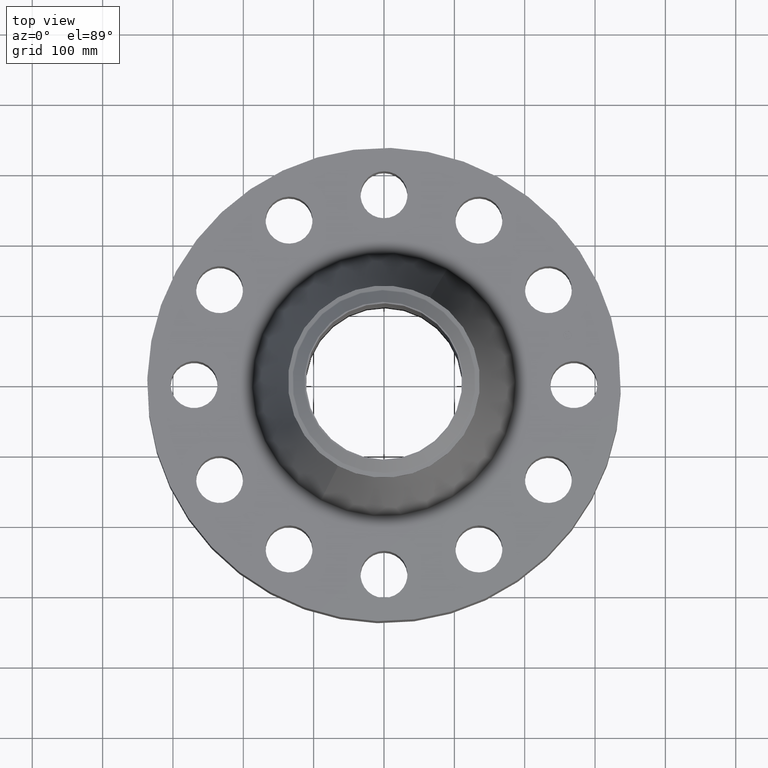
[diagram: clean part render]
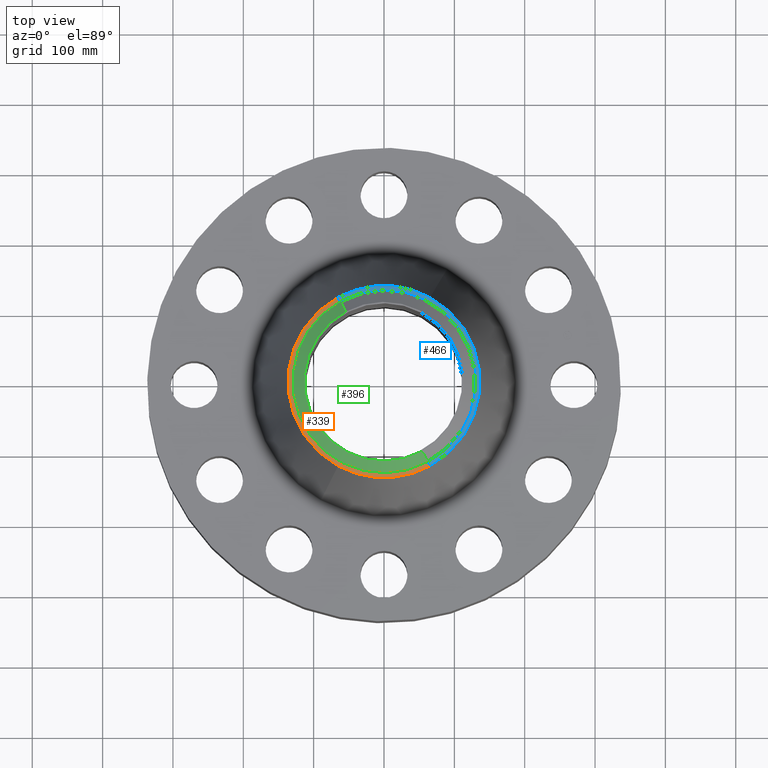
[diagram: same view with three faces highlighted in distinct colors, each labeled with its STEP entity id]
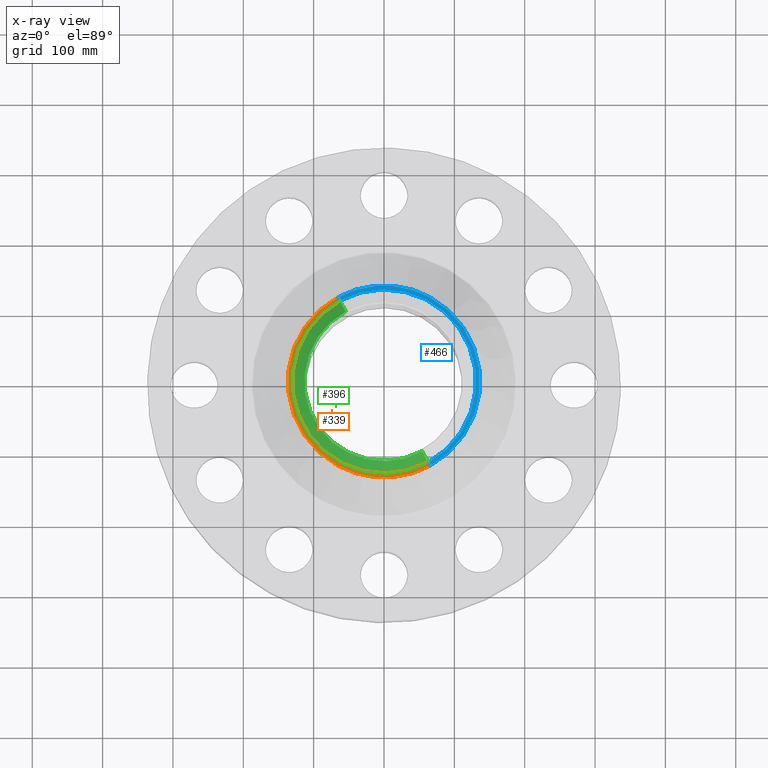
[diagram: x-ray of the same camera — body ghosted, the three highlighted faces saturated]
A machine part, top view with three faces highlighted in distinct colors.
The next image is the same camera in x-ray (body ghosted, the three faces saturated) — at least one of them is partly hidden behind the body in this view.
Their STEP definitions:

[orange] entity #339 — the highlighted conical surface has half-angle 80 deg.
#277=AXIS2_PLACEMENT_3D('Circle Axis2P3D',#275,#276,$) ;
#290=AXIS2_PLACEMENT_3D('Circle Axis2P3D',#288,#289,$) ;
#311=AXIS2_PLACEMENT_3D('Cone Axis2P3D',#308,#309,#310) ;
#322=AXIS2_PLACEMENT_3D('Circle Axis2P3D',#320,#321,$) ;
#258=CARTESIAN_POINT('Vertex',(-2.57691227001,-4.71700627018,15.9420058476)) ;
#272=CARTESIAN_POINT('Vertex',(2.57691227001,-4.71700627018,15.9420058476)) ;
#275=CARTESIAN_POINT('Axis2P3D Location',(0.,0.,15.9420058476)) ;
#288=CARTESIAN_POINT('Axis2P3D Location',(0.,0.,15.9420058476)) ;
#292=CARTESIAN_POINT('Vertex',(-2.57691227001,4.71700627018,15.9420058476)) ;
#308=CARTESIAN_POINT('Axis2P3D Location',(0.,0.,15.9814160193)) ;
#313=CARTESIAN_POINT('Line Origine',(2.52333498223,-4.61893370274,15.9617109335)) ;
#317=CARTESIAN_POINT('Vertex',(2.46975769445,-4.52086113529,15.9814160193)) ;
#320=CARTESIAN_POINT('Axis2P3D Location',(0.,0.,15.9814160193)) ;
#324=CARTESIAN_POINT('Vertex',(-2.46975769445,4.52086113529,15.9814160193)) ;
#327=CARTESIAN_POINT('Line Origine',(-2.52333498223,4.61893370274,15.9617109335)) ;
#276=DIRECTION('Axis2P3D Direction',(0.,0.,-0.0393700787402)) ;
#289=DIRECTION('Axis2P3D Direction',(0.,0.,-0.0393700787402)) ;
#309=DIRECTION('Axis2P3D Direction',(-0.,-0.,-0.0393700787402)) ;
#310=DIRECTION('Axis2P3D XDirection',(-0.0188750212049,0.0345504945626,0.)) ;
#314=DIRECTION('Vector Direction',(0.0185882672208,-0.0340255949157,-0.00683654242783)) ;
#321=DIRECTION('Axis2P3D Direction',(0.,0.,-0.0393700787402)) ;
#328=DIRECTION('Vector Direction',(-0.0185882672208,0.0340255949157,-0.00683654242783)) ;
#315=VECTOR('Line Direction',#314,0.0393700787402) ;
#329=VECTOR('Line Direction',#328,0.0393700787402) ;
#333=ORIENTED_EDGE('',*,*,#319,.F.) ;
#334=ORIENTED_EDGE('',*,*,#326,.F.) ;
#335=ORIENTED_EDGE('',*,*,#331,.T.) ;
#336=ORIENTED_EDGE('',*,*,#294,.T.) ;
#337=ORIENTED_EDGE('',*,*,#279,.F.) ;
#339=ADVANCED_FACE('PartBody',(#338),#312,.T.) ;
#278=CIRCLE('generated circle',#277,5.37500000002) ;
#291=CIRCLE('generated circle',#290,5.37500000002) ;
#323=CIRCLE('generated circle',#322,5.15149380994) ;
#312=CONICAL_SURFACE('Cone',#311,5.15149380994,1.3962634016) ;
#279=EDGE_CURVE('',#273,#259,#278,.T.) ;
#294=EDGE_CURVE('',#293,#259,#291,.F.) ;
#319=EDGE_CURVE('',#318,#273,#316,.T.) ;
#326=EDGE_CURVE('',#325,#318,#323,.F.) ;
#331=EDGE_CURVE('',#325,#293,#330,.T.) ;
#332=EDGE_LOOP('',(#333,#334,#335,#336,#337)) ;
#338=FACE_OUTER_BOUND('',#332,.T.) ;
#316=LINE('Line',#313,#315) ;
#330=LINE('Line',#327,#329) ;
#259=VERTEX_POINT('',#258) ;
#273=VERTEX_POINT('',#272) ;
#293=VERTEX_POINT('',#292) ;
#318=VERTEX_POINT('',#317) ;
#325=VERTEX_POINT('',#324) ;

[blue] entity #466 — the highlighted conical surface has half-angle 80 deg.
#270=AXIS2_PLACEMENT_3D('Circle Axis2P3D',#268,#269,$) ;
#297=AXIS2_PLACEMENT_3D('Circle Axis2P3D',#295,#296,$) ;
#311=AXIS2_PLACEMENT_3D('Cone Axis2P3D',#308,#309,#310) ;
#409=AXIS2_PLACEMENT_3D('Circle Axis2P3D',#407,#408,$) ;
#265=CARTESIAN_POINT('Vertex',(2.57691227001,4.71700627018,15.9420058476)) ;
#268=CARTESIAN_POINT('Axis2P3D Location',(0.,0.,15.9420058476)) ;
#272=CARTESIAN_POINT('Vertex',(2.57691227001,-4.71700627018,15.9420058476)) ;
#292=CARTESIAN_POINT('Vertex',(-2.57691227001,4.71700627018,15.9420058476)) ;
#295=CARTESIAN_POINT('Axis2P3D Location',(0.,0.,15.9420058476)) ;
#308=CARTESIAN_POINT('Axis2P3D Location',(0.,0.,15.9814160193)) ;
#313=CARTESIAN_POINT('Line Origine',(2.52333498223,-4.61893370274,15.9617109335)) ;
#317=CARTESIAN_POINT('Vertex',(2.46975769445,-4.52086113529,15.9814160193)) ;
#324=CARTESIAN_POINT('Vertex',(-2.46975769445,4.52086113529,15.9814160193)) ;
#327=CARTESIAN_POINT('Line Origine',(-2.52333498223,4.61893370274,15.9617109335)) ;
#407=CARTESIAN_POINT('Axis2P3D Location',(0.,0.,15.9814160193)) ;
#269=DIRECTION('Axis2P3D Direction',(0.,0.,-0.0393700787402)) ;
#296=DIRECTION('Axis2P3D Direction',(0.,0.,-0.0393700787402)) ;
#309=DIRECTION('Axis2P3D Direction',(-0.,-0.,-0.0393700787402)) ;
#310=DIRECTION('Axis2P3D XDirection',(-0.0188750212049,0.0345504945626,0.)) ;
#314=DIRECTION('Vector Direction',(0.0185882672208,-0.0340255949157,-0.00683654242783)) ;
#328=DIRECTION('Vector Direction',(-0.0185882672208,0.0340255949157,-0.00683654242783)) ;
#408=DIRECTION('Axis2P3D Direction',(0.,0.,0.0393700787402)) ;
#315=VECTOR('Line Direction',#314,0.0393700787402) ;
#329=VECTOR('Line Direction',#328,0.0393700787402) ;
#460=ORIENTED_EDGE('',*,*,#331,.F.) ;
#461=ORIENTED_EDGE('',*,*,#411,.F.) ;
#462=ORIENTED_EDGE('',*,*,#319,.T.) ;
#463=ORIENTED_EDGE('',*,*,#274,.T.) ;
#464=ORIENTED_EDGE('',*,*,#299,.F.) ;
#466=ADVANCED_FACE('PartBody',(#465),#312,.T.) ;
#271=CIRCLE('generated circle',#270,5.37500000002) ;
#298=CIRCLE('generated circle',#297,5.37500000002) ;
#410=CIRCLE('generated circle',#409,5.15149380994) ;
#312=CONICAL_SURFACE('Cone',#311,5.15149380994,1.3962634016) ;
#274=EDGE_CURVE('',#273,#266,#271,.F.) ;
#299=EDGE_CURVE('',#293,#266,#298,.T.) ;
#319=EDGE_CURVE('',#318,#273,#316,.T.) ;
#331=EDGE_CURVE('',#325,#293,#330,.T.) ;
#411=EDGE_CURVE('',#318,#325,#410,.T.) ;
#459=EDGE_LOOP('',(#460,#461,#462,#463,#464)) ;
#465=FACE_OUTER_BOUND('',#459,.T.) ;
#316=LINE('Line',#313,#315) ;
#330=LINE('Line',#327,#329) ;
#266=VERTEX_POINT('',#265) ;
#273=VERTEX_POINT('',#272) ;
#293=VERTEX_POINT('',#292) ;
#318=VERTEX_POINT('',#317) ;
#325=VERTEX_POINT('',#324) ;

[green] entity #396 — the highlighted conical surface has half-angle 52.5 deg.
#343=AXIS2_PLACEMENT_3D('Cone Axis2P3D',#340,#341,#342) ;
#382=AXIS2_PLACEMENT_3D('Circle Axis2P3D',#380,#381,$) ;
#387=AXIS2_PLACEMENT_3D('Circle Axis2P3D',#385,#386,$) ;
#340=CARTESIAN_POINT('Axis2P3D Location',(0.,0.,16.5000000001)) ;
#349=CARTESIAN_POINT('Vertex',(2.13523677381,-3.90852469741,16.5000000001)) ;
#351=CARTESIAN_POINT('Vertex',(-2.13523677381,3.90852469741,16.5000000001)) ;
#354=CARTESIAN_POINT('Line Origine',(2.29017807636,-4.19214284931,16.2520143726)) ;
#358=CARTESIAN_POINT('Vertex',(2.44511937891,-4.47576100122,16.0040287452)) ;
#365=CARTESIAN_POINT('Vertex',(-2.44511937891,4.47576100122,16.0040287452)) ;
#368=CARTESIAN_POINT('Line Origine',(-2.29017807636,4.19214284931,16.2520143726)) ;
#380=CARTESIAN_POINT('Axis2P3D Location',(0.,0.,16.5000000001)) ;
#385=CARTESIAN_POINT('Axis2P3D Location',(0.,0.,16.0040287452)) ;
#341=DIRECTION('Axis2P3D Direction',(-0.,-0.,-0.0393700787402)) ;
#342=DIRECTION('Axis2P3D XDirection',(0.0188750212049,-0.0345504945626,0.)) ;
#355=DIRECTION('Vector Direction',(0.014974561121,-0.02741075027,-0.023966985394)) ;
#369=DIRECTION('Vector Direction',(-0.014974561121,0.02741075027,-0.023966985394)) ;
#381=DIRECTION('Axis2P3D Direction',(0.,0.,-0.0393700787402)) ;
#386=DIRECTION('Axis2P3D Direction',(0.,0.,-0.0393700787402)) ;
#356=VECTOR('Line Direction',#355,0.0393700787402) ;
#370=VECTOR('Line Direction',#369,0.0393700787402) ;
#391=ORIENTED_EDGE('',*,*,#384,.F.) ;
#392=ORIENTED_EDGE('',*,*,#372,.T.) ;
#393=ORIENTED_EDGE('',*,*,#389,.T.) ;
#394=ORIENTED_EDGE('',*,*,#360,.F.) ;
#396=ADVANCED_FACE('PartBody',(#395),#344,.T.) ;
#383=CIRCLE('generated circle',#382,4.4537401575) ;
#388=CIRCLE('generated circle',#387,5.10010248104) ;
#344=CONICAL_SURFACE('Cone',#343,4.4537401575,0.916297857297) ;
#360=EDGE_CURVE('',#350,#359,#357,.T.) ;
#372=EDGE_CURVE('',#352,#366,#371,.T.) ;
#384=EDGE_CURVE('',#352,#350,#383,.F.) ;
#389=EDGE_CURVE('',#366,#359,#388,.F.) ;
#390=EDGE_LOOP('',(#391,#392,#393,#394)) ;
#395=FACE_OUTER_BOUND('',#390,.T.) ;
#357=LINE('Line',#354,#356) ;
#371=LINE('Line',#368,#370) ;
#350=VERTEX_POINT('',#349) ;
#352=VERTEX_POINT('',#351) ;
#359=VERTEX_POINT('',#358) ;
#366=VERTEX_POINT('',#365) ;